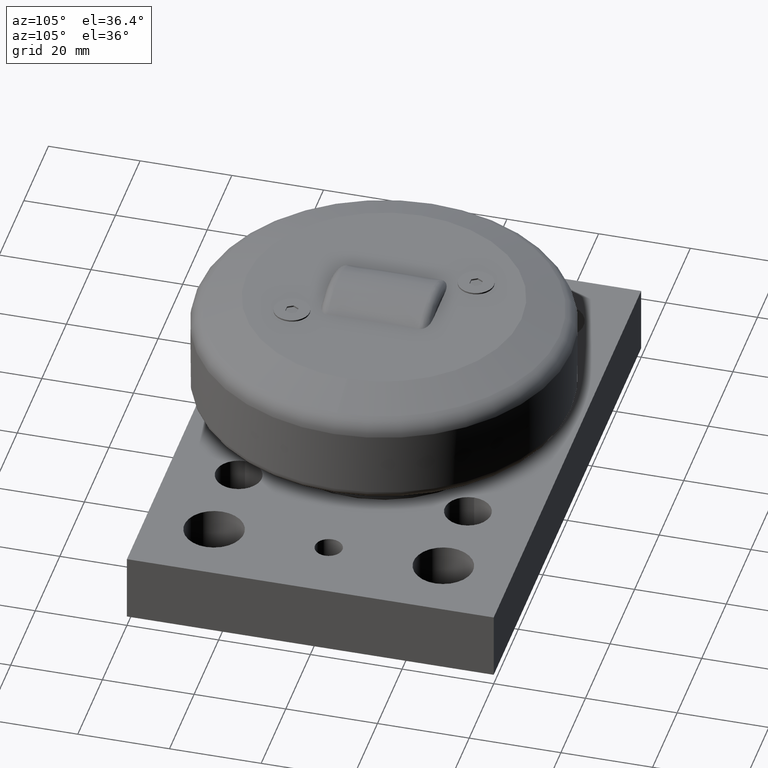
[diagram: clean part render]
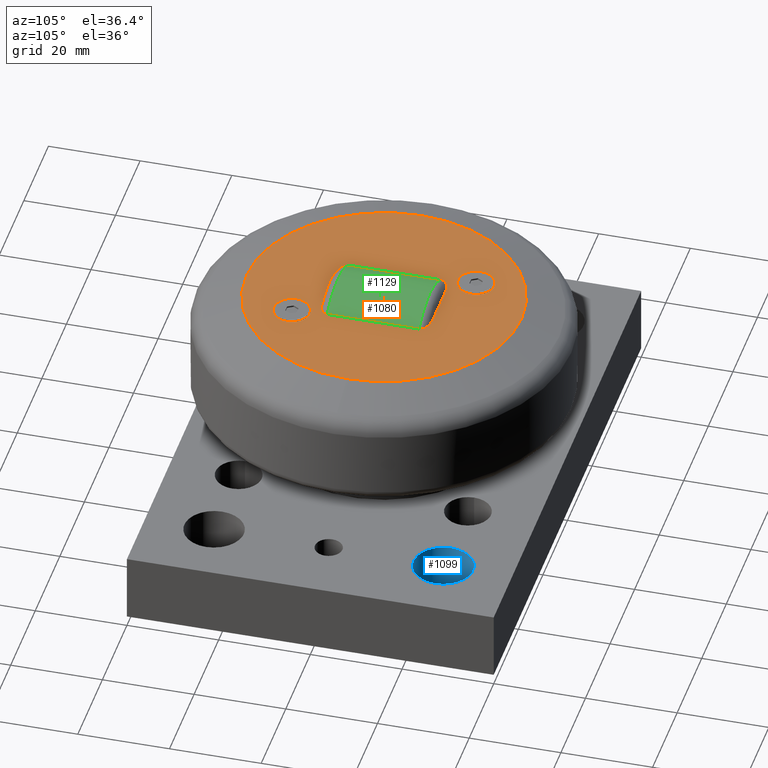
[diagram: same view with three faces highlighted in distinct colors, each labeled with its STEP entity id]
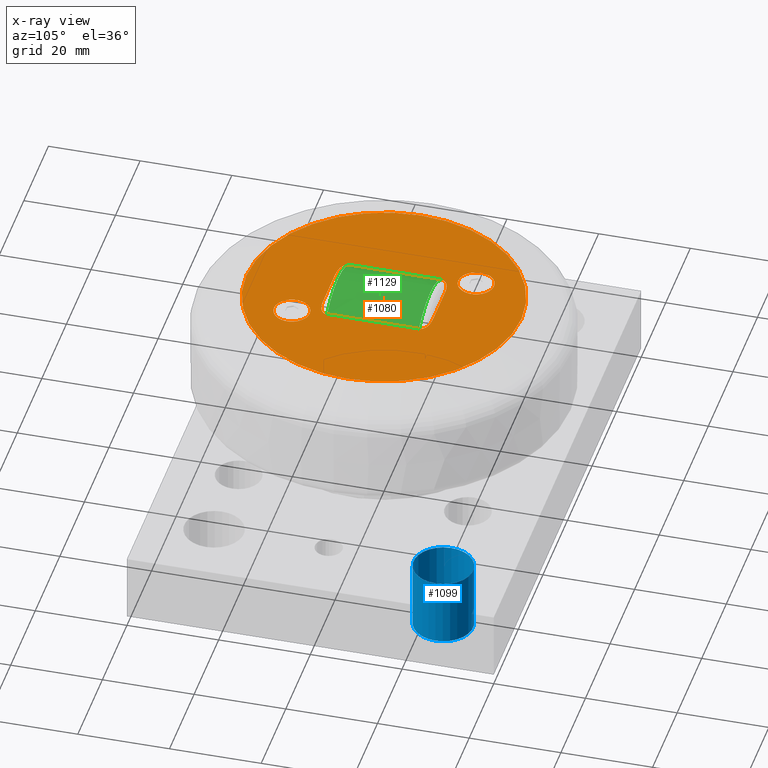
[diagram: x-ray of the same camera — body ghosted, the three highlighted faces saturated]
A machine part, auxiliary view with three faces highlighted in distinct colors.
The next image is the same camera in x-ray (body ghosted, the three faces saturated) — at least one of them is partly hidden behind the body in this view.
Their STEP definitions:

[orange] entity #1080 — the highlighted planar face has unit normal (-0, 0, 1).
#29=B_SPLINE_CURVE_WITH_KNOTS('',3,(#1671,#1672,#1673,#1674,#1675,#1676,
#1677,#1678,#1679,#1680),.UNSPECIFIED.,.F.,.F.,(4,2,2,2,4),(2.33458611996932,
2.63669626062931,2.74019628740268,2.77735799024241,2.8079993221004),
 .UNSPECIFIED.);
#30=B_SPLINE_CURVE_WITH_KNOTS('',3,(#1682,#1683,#1684,#1685,#1686,#1687),
 .UNSPECIFIED.,.F.,.F.,(4,2,4),(17.7541579738369,18.7197514151462,19.6853448564555),
 .UNSPECIFIED.);
#31=B_SPLINE_CURVE_WITH_KNOTS('',3,(#1689,#1690,#1691,#1692,#1693,#1694,
#1695,#1696,#1697,#1698),.UNSPECIFIED.,.F.,.F.,(4,2,2,2,4),(-0.934117397289801,
-0.903476065431812,-0.866314362592076,-0.762814335818708,-0.460704195158717),
 .UNSPECIFIED.);
#32=B_SPLINE_CURVE_WITH_KNOTS('',3,(#1702,#1703,#1704,#1705,#1706,#1707,
#1708,#1709,#1710,#1711),.UNSPECIFIED.,.F.,.F.,(4,2,2,2,4),(0.460704195158717,
0.762814335818708,0.866314362592076,0.903476065431812,0.934117397289802),
 .UNSPECIFIED.);
#33=B_SPLINE_CURVE_WITH_KNOTS('',3,(#1713,#1714,#1715,#1716,#1717,#1718),
 .UNSPECIFIED.,.F.,.F.,(4,2,4),(5.27432369707279,6.23991713838207,7.20551057969138),
 .UNSPECIFIED.);
#34=B_SPLINE_CURVE_WITH_KNOTS('',3,(#1720,#1721,#1722,#1723,#1724,#1725,
#1726,#1727,#1728,#1729),.UNSPECIFIED.,.F.,.F.,(4,2,2,2,4),(0.939764527520799,
0.970405859378789,1.00756756221853,1.11106758899189,1.41317772965188),
 .UNSPECIFIED.);
#42=FACE_BOUND('',#226,.T.);
#43=FACE_BOUND('',#227,.T.);
#44=FACE_BOUND('',#228,.T.);
#71=CIRCLE('',#1156,3.9);
#74=CIRCLE('',#1164,30.);
#75=CIRCLE('',#1165,30.);
#76=CIRCLE('',#1166,3.9);
#164=FACE_OUTER_BOUND('',#225,.T.);
#225=EDGE_LOOP('',(#761,#762));
#226=EDGE_LOOP('',(#763));
#227=EDGE_LOOP('',(#764,#765,#766,#767,#768,#769,#770,#771));
#228=EDGE_LOOP('',(#772));
#325=LINE('',#1700,#400);
#326=LINE('',#1730,#401);
#400=VECTOR('',#1332,10.);
#401=VECTOR('',#1333,10.);
#464=VERTEX_POINT('',#1639);
#471=VERTEX_POINT('',#1663);
#472=VERTEX_POINT('',#1664);
#473=VERTEX_POINT('',#1667);
#474=VERTEX_POINT('',#1669);
#475=VERTEX_POINT('',#1670);
#476=VERTEX_POINT('',#1681);
#477=VERTEX_POINT('',#1688);
#478=VERTEX_POINT('',#1699);
#479=VERTEX_POINT('',#1701);
#480=VERTEX_POINT('',#1712);
#481=VERTEX_POINT('',#1719);
#576=EDGE_CURVE('',#464,#464,#71,.T.);
#588=EDGE_CURVE('',#471,#472,#74,.T.);
#589=EDGE_CURVE('',#472,#471,#75,.T.);
#590=EDGE_CURVE('',#473,#473,#76,.T.);
#591=EDGE_CURVE('',#474,#475,#29,.T.);
#592=EDGE_CURVE('',#475,#476,#30,.T.);
#593=EDGE_CURVE('',#476,#477,#31,.T.);
#594=EDGE_CURVE('',#477,#478,#325,.T.);
#595=EDGE_CURVE('',#478,#479,#32,.T.);
#596=EDGE_CURVE('',#479,#480,#33,.T.);
#597=EDGE_CURVE('',#480,#481,#34,.T.);
#598=EDGE_CURVE('',#481,#474,#326,.T.);
#761=ORIENTED_EDGE('',*,*,#588,.T.);
#762=ORIENTED_EDGE('',*,*,#589,.T.);
#763=ORIENTED_EDGE('',*,*,#590,.T.);
#764=ORIENTED_EDGE('',*,*,#591,.T.);
#765=ORIENTED_EDGE('',*,*,#592,.T.);
#766=ORIENTED_EDGE('',*,*,#593,.T.);
#767=ORIENTED_EDGE('',*,*,#594,.T.);
#768=ORIENTED_EDGE('',*,*,#595,.T.);
#769=ORIENTED_EDGE('',*,*,#596,.T.);
#770=ORIENTED_EDGE('',*,*,#597,.T.);
#771=ORIENTED_EDGE('',*,*,#598,.T.);
#772=ORIENTED_EDGE('',*,*,#576,.T.);
#1047=PLANE('',#1163);
#1080=ADVANCED_FACE('',(#164,#42,#43,#44),#1047,.T.);
#1156=AXIS2_PLACEMENT_3D('',#1640,#1301,#1302);
#1163=AXIS2_PLACEMENT_3D('',#1662,#1324,#1325);
#1164=AXIS2_PLACEMENT_3D('',#1665,#1326,#1327);
#1165=AXIS2_PLACEMENT_3D('',#1666,#1328,#1329);
#1166=AXIS2_PLACEMENT_3D('',#1668,#1330,#1331);
#1301=DIRECTION('center_axis',(2.4492935982947E-16,-2.96389298347621E-32,
-1.));
#1302=DIRECTION('ref_axis',(0.,-1.,0.));
#1324=DIRECTION('center_axis',(-2.4492935982947E-16,2.96389298347621E-32,
1.));
#1325=DIRECTION('ref_axis',(1.66533453693774E-16,1.,1.11500023686446E-32));
#1326=DIRECTION('center_axis',(-2.4492935982947E-16,2.96389298347621E-32,
1.));
#1327=DIRECTION('ref_axis',(-1.,1.66533453693774E-16,-2.31332753897922E-16));
#1328=DIRECTION('center_axis',(-2.4492935982947E-16,2.96389298347621E-32,
1.));
#1329=DIRECTION('ref_axis',(-1.,1.66533453693774E-16,-2.31332753897922E-16));
#1330=DIRECTION('center_axis',(2.4492935982947E-16,-2.96389298347621E-32,
-1.));
#1331=DIRECTION('ref_axis',(0.,-1.,0.));
#1332=DIRECTION('',(1.,-1.56008148075804E-16,2.4492935982947E-16));
#1333=DIRECTION('',(-1.,1.56008148075804E-16,-2.4492935982947E-16));
#1639=CARTESIAN_POINT('',(50.30380759507,61.39239414279,48.5));
#1640=CARTESIAN_POINT('Origin',(50.30380759507,57.49239414279,48.5));
#1662=CARTESIAN_POINT('Origin',(30.3,40.,48.5));
#1663=CARTESIAN_POINT('',(30.,40.,48.5));
#1664=CARTESIAN_POINT('',(89.9999999999999,40.,48.5));
#1665=CARTESIAN_POINT('Origin',(60.,40.,48.5));
#1666=CARTESIAN_POINT('Origin',(60.,40.,48.5));
#1667=CARTESIAN_POINT('',(69.69619240493,26.40760585721,48.5));
#1668=CARTESIAN_POINT('Origin',(69.69619240493,22.50760585721,48.5));
#1669=CARTESIAN_POINT('',(55.0937860654772,28.,48.5));
#1670=CARTESIAN_POINT('',(50.9568780942473,29.9713467048711,48.5));
#1671=CARTESIAN_POINT('Ctrl Pts',(55.0937860654772,28.,48.5));
#1672=CARTESIAN_POINT('Ctrl Pts',(54.0867522632772,28.,48.5));
#1673=CARTESIAN_POINT('Ctrl Pts',(52.8831329218805,28.1078381864151,48.5));
#1674=CARTESIAN_POINT('Ctrl Pts',(51.6930777857215,28.7495269088625,48.5));
#1675=CARTESIAN_POINT('Ctrl Pts',(51.3672530323712,29.0049370080709,48.5));
#1676=CARTESIAN_POINT('Ctrl Pts',(51.1104047625734,29.3972000879451,48.5));
#1677=CARTESIAN_POINT('Ctrl Pts',(51.0455756293799,29.5309650236217,48.5));
#1678=CARTESIAN_POINT('Ctrl Pts',(50.9796614095395,29.7471498704614,48.5));
#1679=CARTESIAN_POINT('Ctrl Pts',(50.9594461503869,29.8662909920094,48.5));
#1680=CARTESIAN_POINT('Ctrl Pts',(50.956878094247,29.9713467048711,48.5));
#1681=CARTESIAN_POINT('',(50.9568780942473,50.028653295129,48.5));
#1682=CARTESIAN_POINT('Ctrl Pts',(50.9568780942471,29.9713467048711,48.5));
#1683=CARTESIAN_POINT('Ctrl Pts',(50.8726925913793,33.4152620770176,48.5));
#1684=CARTESIAN_POINT('Ctrl Pts',(50.8348486100884,36.7813551956358,48.5));
#1685=CARTESIAN_POINT('Ctrl Pts',(50.8348486100884,43.2186448043644,48.5));
#1686=CARTESIAN_POINT('Ctrl Pts',(50.8726925913794,46.5847379229825,48.5));
#1687=CARTESIAN_POINT('Ctrl Pts',(50.9568780942471,50.028653295129,48.5));
#1688=CARTESIAN_POINT('',(55.0937860654772,52.,48.5));
#1689=CARTESIAN_POINT('Ctrl Pts',(50.956878094247,50.028653295129,48.5));
#1690=CARTESIAN_POINT('Ctrl Pts',(50.9594461503869,50.1337090079906,48.5));
#1691=CARTESIAN_POINT('Ctrl Pts',(50.9796614095395,50.2528501295387,48.5));
#1692=CARTESIAN_POINT('Ctrl Pts',(51.0455756293799,50.4690349763783,48.5));
#1693=CARTESIAN_POINT('Ctrl Pts',(51.1104047625734,50.6027999120549,48.5));
#1694=CARTESIAN_POINT('Ctrl Pts',(51.3672530323712,50.9950629919291,48.5));
#1695=CARTESIAN_POINT('Ctrl Pts',(51.6930777857215,51.2504730911376,48.5));
#1696=CARTESIAN_POINT('Ctrl Pts',(52.8831329218805,51.8921618135849,48.5));
#1697=CARTESIAN_POINT('Ctrl Pts',(54.0867522632772,52.,48.5));
#1698=CARTESIAN_POINT('Ctrl Pts',(55.0937860654772,52.,48.5));
#1699=CARTESIAN_POINT('',(64.9062139345227,52.,48.5));
#1700=CARTESIAN_POINT('',(38.4882161752047,52.,48.5));
#1701=CARTESIAN_POINT('',(69.0431219057527,50.028653295129,48.5));
#1702=CARTESIAN_POINT('Ctrl Pts',(64.9062139345227,52.,48.5));
#1703=CARTESIAN_POINT('Ctrl Pts',(65.9132477367227,52.,48.5));
#1704=CARTESIAN_POINT('Ctrl Pts',(67.1168670781194,51.8921618135849,48.5));
#1705=CARTESIAN_POINT('Ctrl Pts',(68.3069222142785,51.2504730911376,48.5));
#1706=CARTESIAN_POINT('Ctrl Pts',(68.6327469676287,50.9950629919291,48.5));
#1707=CARTESIAN_POINT('Ctrl Pts',(68.8895952374265,50.6027999120549,48.5));
#1708=CARTESIAN_POINT('Ctrl Pts',(68.95442437062,50.4690349763783,48.5));
#1709=CARTESIAN_POINT('Ctrl Pts',(69.0203385904604,50.2528501295387,48.5));
#1710=CARTESIAN_POINT('Ctrl Pts',(69.0405538496131,50.1337090079906,48.5));
#1711=CARTESIAN_POINT('Ctrl Pts',(69.0431219057529,50.028653295129,48.5));
#1712=CARTESIAN_POINT('',(69.0431219057527,29.9713467048711,48.5));
#1713=CARTESIAN_POINT('Ctrl Pts',(69.0431219057529,50.028653295129,48.5));
#1714=CARTESIAN_POINT('Ctrl Pts',(69.1273074086206,46.5847379229825,48.5));
#1715=CARTESIAN_POINT('Ctrl Pts',(69.1651513899116,43.2186448043644,48.5));
#1716=CARTESIAN_POINT('Ctrl Pts',(69.1651513899116,36.7813551956358,48.5));
#1717=CARTESIAN_POINT('Ctrl Pts',(69.1273074086206,33.4152620770176,48.5));
#1718=CARTESIAN_POINT('Ctrl Pts',(69.0431219057528,29.9713467048711,48.5));
#1719=CARTESIAN_POINT('',(64.9062139345227,28.,48.5));
#1720=CARTESIAN_POINT('Ctrl Pts',(69.0431219057529,29.9713467048711,48.5));
#1721=CARTESIAN_POINT('Ctrl Pts',(69.0405538496131,29.8662909920094,48.5));
#1722=CARTESIAN_POINT('Ctrl Pts',(69.0203385904604,29.7471498704614,48.5));
#1723=CARTESIAN_POINT('Ctrl Pts',(68.95442437062,29.5309650236217,48.5));
#1724=CARTESIAN_POINT('Ctrl Pts',(68.8895952374265,29.3972000879451,48.5));
#1725=CARTESIAN_POINT('Ctrl Pts',(68.6327469676287,29.0049370080709,48.5));
#1726=CARTESIAN_POINT('Ctrl Pts',(68.3069222142785,28.7495269088625,48.5));
#1727=CARTESIAN_POINT('Ctrl Pts',(67.1168670781194,28.1078381864151,48.5));
#1728=CARTESIAN_POINT('Ctrl Pts',(65.9132477367227,28.,48.5));
#1729=CARTESIAN_POINT('Ctrl Pts',(64.9062139345227,28.,48.5));
#1730=CARTESIAN_POINT('',(38.4882161752047,28.,48.5));

[blue] entity #1099 — the highlighted cylindrical surface (bore or boss wall) has radius 6.5 mm, axis along (0, 0, -1).
#94=CIRCLE('',#1195,6.5);
#104=CIRCLE('',#1206,6.5);
#142=CYLINDRICAL_SURFACE('',#1215,6.5);
#183=FACE_OUTER_BOUND('',#270,.T.);
#270=EDGE_LOOP('',(#879,#880,#881,#882));
#361=LINE('',#1864,#436);
#436=VECTOR('',#1466,6.5);
#515=VERTEX_POINT('',#1816);
#529=VERTEX_POINT('',#1845);
#640=EDGE_CURVE('',#515,#515,#94,.T.);
#654=EDGE_CURVE('',#529,#529,#104,.T.);
#663=EDGE_CURVE('',#515,#529,#361,.T.);
#879=ORIENTED_EDGE('',*,*,#640,.F.);
#880=ORIENTED_EDGE('',*,*,#663,.T.);
#881=ORIENTED_EDGE('',*,*,#654,.F.);
#882=ORIENTED_EDGE('',*,*,#663,.F.);
#1099=ADVANCED_FACE('',(#183),#142,.F.);
#1195=AXIS2_PLACEMENT_3D('',#1817,#1414,#1415);
#1206=AXIS2_PLACEMENT_3D('',#1846,#1440,#1441);
#1215=AXIS2_PLACEMENT_3D('',#1863,#1464,#1465);
#1414=DIRECTION('center_axis',(0.,0.,-1.));
#1415=DIRECTION('ref_axis',(-1.,0.,0.));
#1440=DIRECTION('center_axis',(0.,0.,1.));
#1441=DIRECTION('ref_axis',(-1.,0.,0.));
#1464=DIRECTION('center_axis',(0.,0.,-1.));
#1465=DIRECTION('ref_axis',(-1.,0.,0.));
#1466=DIRECTION('',(0.,0.,-1.));
#1816=CARTESIAN_POINT('',(111.5,65.,15.));
#1817=CARTESIAN_POINT('Origin',(105.,65.,15.));
#1845=CARTESIAN_POINT('',(111.5,65.,0.));
#1846=CARTESIAN_POINT('Origin',(105.,65.,0.));
#1863=CARTESIAN_POINT('Origin',(105.,65.,15.));
#1864=CARTESIAN_POINT('',(111.5,65.,15.));

[green] entity #1129 — the highlighted face is a freeform B-spline surface patch.
#16=(
BOUNDED_SURFACE()
B_SPLINE_SURFACE(2,2,((#2074,#2075,#2076),(#2077,#2078,#2079),(#2080,#2081,
#2082)),.UNSPECIFIED.,.F.,.F.,.F.)
B_SPLINE_SURFACE_WITH_KNOTS((3,3),(3,3),(-0.0143271377072365,0.0143271377072367),
(-0.632670001018532,0.632670001018527),.UNSPECIFIED.)
GEOMETRIC_REPRESENTATION_ITEM()
RATIONAL_B_SPLINE_SURFACE(((1.,0.806451612903228,1.),(0.999897368318151,
0.806368845417865,0.999897368318151),(1.,0.806451612903228,1.)))
REPRESENTATION_ITEM('')
SURFACE()
);
#30=B_SPLINE_CURVE_WITH_KNOTS('',3,(#1682,#1683,#1684,#1685,#1686,#1687),
 .UNSPECIFIED.,.F.,.F.,(4,2,4),(17.7541579738369,18.7197514151462,19.6853448564555),
 .UNSPECIFIED.);
#33=B_SPLINE_CURVE_WITH_KNOTS('',3,(#1713,#1714,#1715,#1716,#1717,#1718),
 .UNSPECIFIED.,.F.,.F.,(4,2,4),(5.27432369707279,6.23991713838207,7.20551057969138),
 .UNSPECIFIED.);
#134=CIRCLE('',#1274,15.4281578227054);
#136=CIRCLE('',#1277,15.4281578227054);
#213=FACE_OUTER_BOUND('',#303,.T.);
#303=EDGE_LOOP('',(#1030,#1031,#1032,#1033));
#475=VERTEX_POINT('',#1670);
#476=VERTEX_POINT('',#1681);
#479=VERTEX_POINT('',#1701);
#480=VERTEX_POINT('',#1712);
#592=EDGE_CURVE('',#475,#476,#30,.T.);
#596=EDGE_CURVE('',#479,#480,#33,.T.);
#720=EDGE_CURVE('',#480,#475,#134,.T.);
#722=EDGE_CURVE('',#476,#479,#136,.T.);
#1030=ORIENTED_EDGE('',*,*,#596,.F.);
#1031=ORIENTED_EDGE('',*,*,#722,.F.);
#1032=ORIENTED_EDGE('',*,*,#592,.F.);
#1033=ORIENTED_EDGE('',*,*,#720,.F.);
#1129=ADVANCED_FACE('',(#213),#16,.F.);
#1274=AXIS2_PLACEMENT_3D('',#2071,#1602,#1603);
#1277=AXIS2_PLACEMENT_3D('',#2083,#1608,#1609);
#1602=DIRECTION('center_axis',(-1.56008148075804E-16,-1.,1.50685053175595E-32));
#1603=DIRECTION('ref_axis',(1.,-1.7230269997659E-17,4.04453249729658E-21));
#1608=DIRECTION('center_axis',(1.56008148075804E-16,1.,-1.50685053175595E-32));
#1609=DIRECTION('ref_axis',(1.,-1.61151927707338E-16,4.04453249724864E-21));
#1670=CARTESIAN_POINT('',(50.9568780942473,29.9713467048711,48.5));
#1681=CARTESIAN_POINT('',(50.9568780942473,50.028653295129,48.5));
#1682=CARTESIAN_POINT('Ctrl Pts',(50.9568780942471,29.9713467048711,48.5));
#1683=CARTESIAN_POINT('Ctrl Pts',(50.8726925913793,33.4152620770176,48.5));
#1684=CARTESIAN_POINT('Ctrl Pts',(50.8348486100884,36.7813551956358,48.5));
#1685=CARTESIAN_POINT('Ctrl Pts',(50.8348486100884,43.2186448043644,48.5));
#1686=CARTESIAN_POINT('Ctrl Pts',(50.8726925913794,46.5847379229825,48.5));
#1687=CARTESIAN_POINT('Ctrl Pts',(50.9568780942471,50.028653295129,48.5));
#1701=CARTESIAN_POINT('',(69.0431219057527,50.028653295129,48.5));
#1712=CARTESIAN_POINT('',(69.0431219057527,29.9713467048711,48.5));
#1713=CARTESIAN_POINT('Ctrl Pts',(69.0431219057529,50.028653295129,48.5));
#1714=CARTESIAN_POINT('Ctrl Pts',(69.1273074086206,46.5847379229825,48.5));
#1715=CARTESIAN_POINT('Ctrl Pts',(69.1651513899116,43.2186448043644,48.5));
#1716=CARTESIAN_POINT('Ctrl Pts',(69.1651513899116,36.7813551956358,48.5));
#1717=CARTESIAN_POINT('Ctrl Pts',(69.1273074086206,33.4152620770176,48.5));
#1718=CARTESIAN_POINT('Ctrl Pts',(69.0431219057528,29.9713467048711,48.5));
#2071=CARTESIAN_POINT('Origin',(60.,29.9713467048711,36.));
#2074=CARTESIAN_POINT('Ctrl Pts',(69.1226711040351,50.028653295129,48.4420627602463));
#2075=CARTESIAN_POINT('Ctrl Pts',(60.,50.028653295129,55.1309157001546));
#2076=CARTESIAN_POINT('Ctrl Pts',(50.8773288959649,50.028653295129,48.4420627602463));
#2077=CARTESIAN_POINT('Ctrl Pts',(69.2076360360587,40.0000000000001,48.5579431865603));
#2078=CARTESIAN_POINT('Ctrl Pts',(60.,40.0000000000001,55.309093443655));
#2079=CARTESIAN_POINT('Ctrl Pts',(50.7923639639412,40.0000000000001,48.5579431865603));
#2080=CARTESIAN_POINT('Ctrl Pts',(69.1226711040351,29.9713467048711,48.4420627602463));
#2081=CARTESIAN_POINT('Ctrl Pts',(60.,29.9713467048711,55.1309157001546));
#2082=CARTESIAN_POINT('Ctrl Pts',(50.8773288959649,29.9713467048711,48.4420627602463));
#2083=CARTESIAN_POINT('Origin',(60.,50.0286532951289,36.));